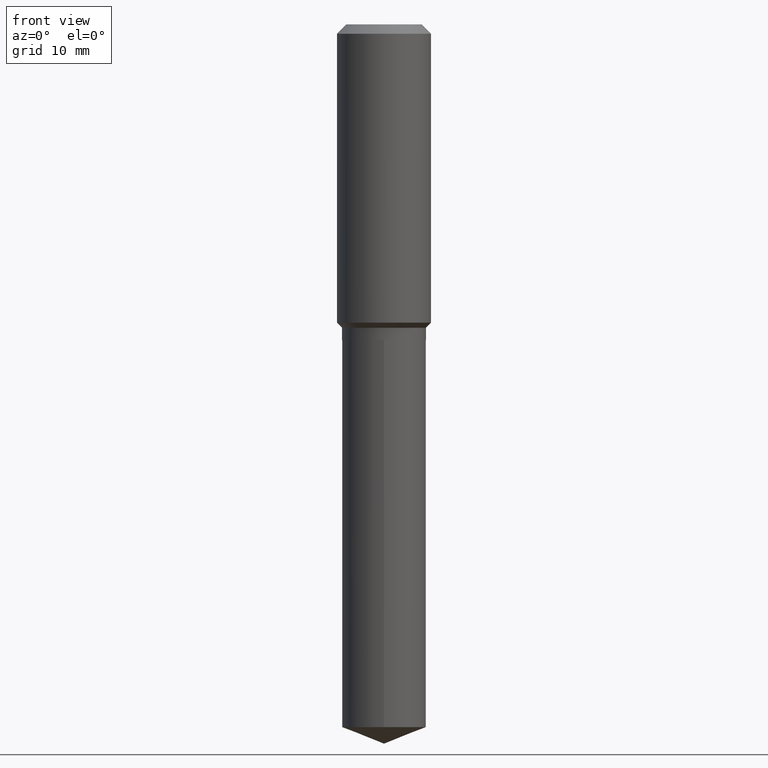
[diagram: clean part render]
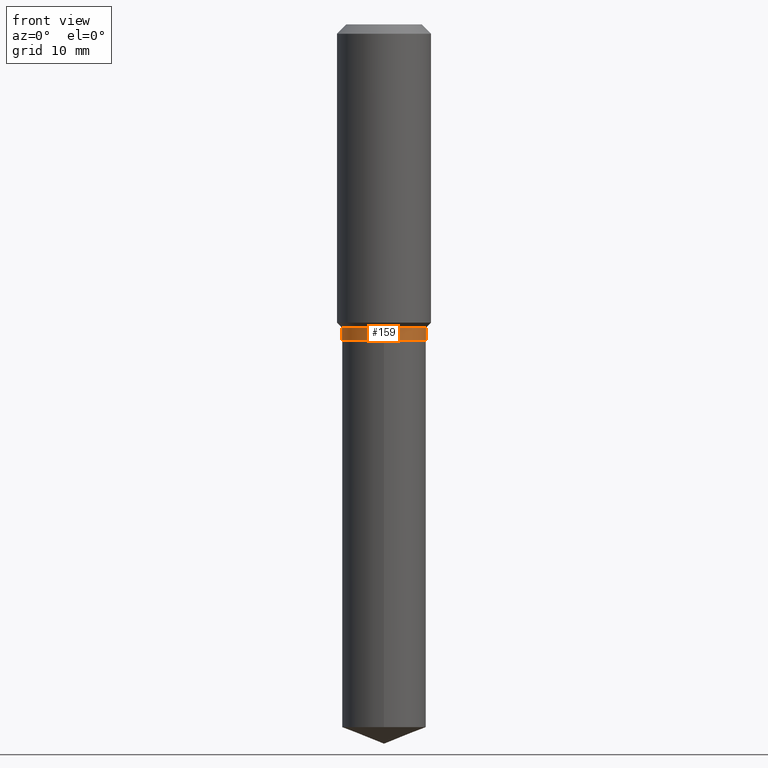
[diagram: same view with one face highlighted and labeled with its STEP entity id]
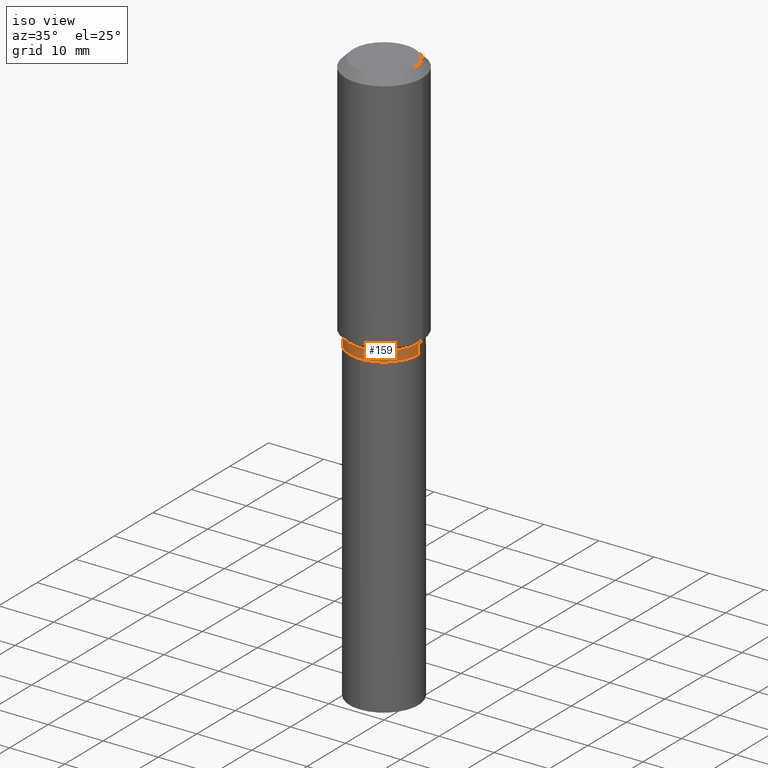
[diagram: same view with one face highlighted and labeled with its STEP entity id]
A machine part, front view. The second image highlights one B-rep face of the part: STEP entity #159.
A second angle (iso view) of the same face is appended — the face is thin or edge-on in the first view.
In plain terms, the highlighted cylindrical surface (partial cylindrical patch) has radius 6.2497 mm, axis along (-0, 0, 1).
Its self-contained STEP definition (entity closure, byte-faithful):
#9 = CYLINDRICAL_SURFACE ( 'NONE', #278, 0.2460499999999999354 ) ;
#19 = DIRECTION ( 'NONE',  ( -2.445468806185136597E-29, 3.491481338843145583E-15, 1.000000000000000000 ) ) ;
#23 = ORIENTED_EDGE ( 'NONE', *, *, #297, .F. ) ;
#50 = CARTESIAN_POINT ( 'NONE',  ( 4.344619881068514536E-29, -6.202965746588733394E-15, -1.776600000000000401 ) ) ;
#59 = CARTESIAN_POINT ( 'NONE',  ( -0.2460499999999999354, 1.748290401337726049E-15, -1.210303978957219254E-29 ) ) ;
#93 = CARTESIAN_POINT ( 'NONE',  ( 4.523872744561886834E-29, -6.458891328725938439E-15, -1.849900000000000988 ) ) ;
#97 = DIRECTION ( 'NONE',  ( 1.000000000000000000, -6.982962677686265133E-15, 0.000000000000000000 ) ) ;
#98 = VERTEX_POINT ( 'NONE', #415 ) ;
#104 = CARTESIAN_POINT ( 'NONE',  ( 0.2460499999999999354, -1.718157966844705344E-15, 1.199783295684589643E-29 ) ) ;
#105 = VERTEX_POINT ( 'NONE', #299 ) ;
#109 = AXIS2_PLACEMENT_3D ( 'NONE', #50, #19, #161 ) ;
#111 = FACE_OUTER_BOUND ( 'NONE', #434, .T. ) ;
#117 = VECTOR ( 'NONE', #348, 39.37007874015748143 ) ;
#157 = VECTOR ( 'NONE', #480, 39.37007874015748143 ) ;
#159 = ADVANCED_FACE ( 'NONE', ( #111 ), #9, .T. ) ;
#161 = DIRECTION ( 'NONE',  ( 1.000000000000000000, -6.982962677686265133E-15, 0.000000000000000000 ) ) ;
#185 = ORIENTED_EDGE ( 'NONE', *, *, #333, .T. ) ;
#187 = ORIENTED_EDGE ( 'NONE', *, *, #304, .F. ) ;
#203 = CIRCLE ( 'NONE', #109, 0.2460499999999999354 ) ;
#212 = CARTESIAN_POINT ( 'NONE',  ( 0.2460499999999999354, -8.177049295570642994E-15, -1.849900000000000988 ) ) ;
#243 = CARTESIAN_POINT ( 'NONE',  ( 0.2460499999999999354, -7.921123713433438738E-15, -1.776600000000000401 ) ) ;
#256 = CARTESIAN_POINT ( 'NONE',  ( 0.000000000000000000, 0.000000000000000000, 0.000000000000000000 ) ) ;
#278 = AXIS2_PLACEMENT_3D ( 'NONE', #256, #416, #306 ) ;
#297 = EDGE_CURVE ( 'NONE', #105, #98, #356, .T. ) ;
#299 = CARTESIAN_POINT ( 'NONE',  ( -0.2460499999999999354, -4.582638136319609868E-15, -1.849900000000000988 ) ) ;
#304 = EDGE_CURVE ( 'NONE', #98, #412, #203, .T. ) ;
#306 = DIRECTION ( 'NONE',  ( 1.000000000000000000, -6.982962677686265922E-15, 4.876176775795935793E-29 ) ) ;
#327 = DIRECTION ( 'NONE',  ( -2.445468806185136597E-29, 3.491481338843145583E-15, 1.000000000000000000 ) ) ;
#333 = EDGE_CURVE ( 'NONE', #105, #488, #486, .T. ) ;
#348 = DIRECTION ( 'NONE',  ( -2.445468806185136877E-29, 3.491481338843145188E-15, 1.000000000000000000 ) ) ;
#356 = LINE ( 'NONE', #59, #117 ) ;
#402 = EDGE_CURVE ( 'NONE', #488, #412, #444, .T. ) ;
#410 = ORIENTED_EDGE ( 'NONE', *, *, #402, .T. ) ;
#412 = VERTEX_POINT ( 'NONE', #243 ) ;
#413 = AXIS2_PLACEMENT_3D ( 'NONE', #93, #327, #97 ) ;
#415 = CARTESIAN_POINT ( 'NONE',  ( -0.2460499999999999354, -4.582638136319609868E-15, -1.776600000000000401 ) ) ;
#416 = DIRECTION ( 'NONE',  ( -2.445468806185136597E-29, 3.491481338843145583E-15, 1.000000000000000000 ) ) ;
#434 = EDGE_LOOP ( 'NONE', ( #23, #185, #410, #187 ) ) ;
#444 = LINE ( 'NONE', #104, #157 ) ;
#480 = DIRECTION ( 'NONE',  ( -2.445468806185136877E-29, 3.491481338843145188E-15, 1.000000000000000000 ) ) ;
#486 = CIRCLE ( 'NONE', #413, 0.2460499999999999354 ) ;
#488 = VERTEX_POINT ( 'NONE', #212 ) ;